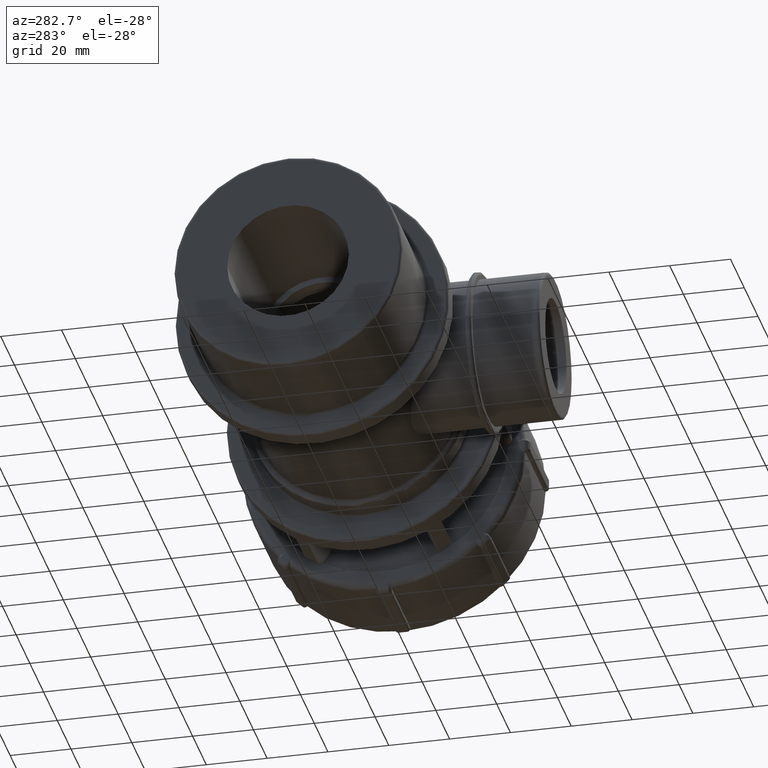
[diagram: clean part render]
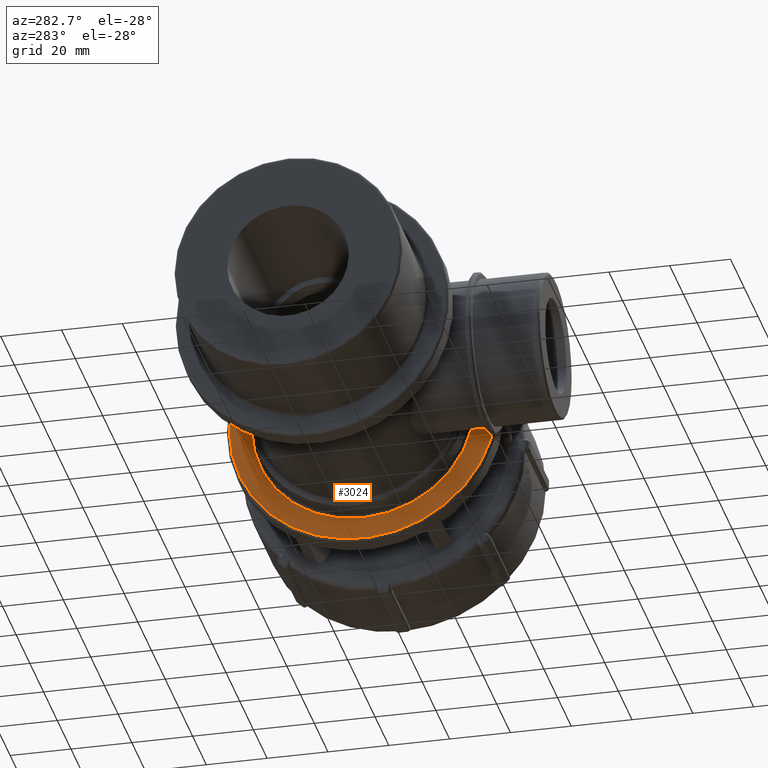
[diagram: same view with one face highlighted and labeled with its STEP entity id]
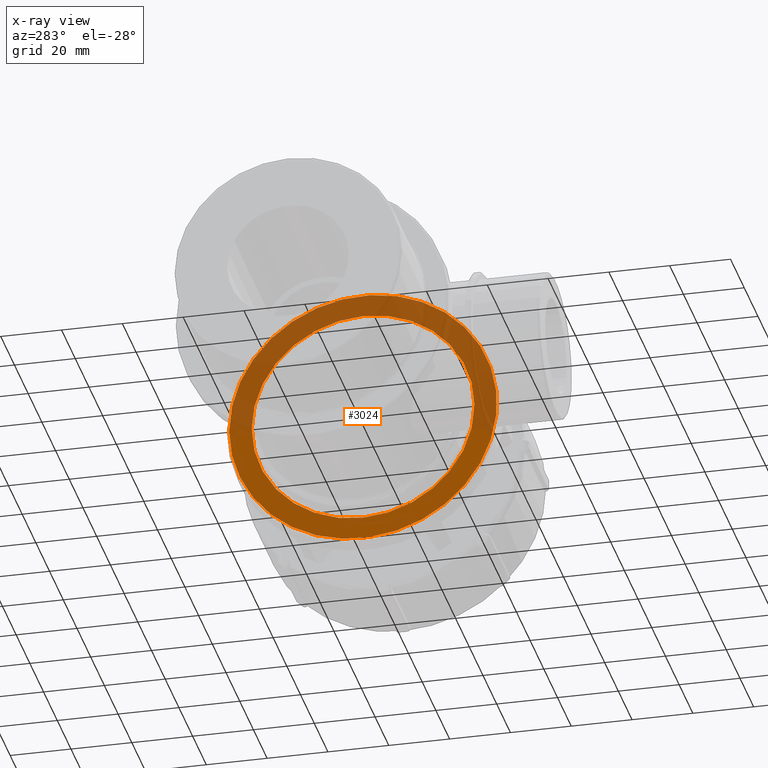
[diagram: x-ray of the same camera — body ghosted, the highlighted face saturated]
A machine part, auxiliary view. The second image highlights one B-rep face of the part: STEP entity #3024.
The next image is the same camera in x-ray: the body ghosted, the highlighted face saturated — about 54% of this face is hidden behind the body in this view.
In plain terms, the highlighted planar face has unit normal (-1, 0, 0).
Its self-contained STEP definition (entity closure, byte-faithful):
#428=PLANE('',#3264);
#529=CIRCLE('',#3263,36.625);
#530=CIRCLE('',#3265,44.);
#758=FACE_BOUND('',#1050,.T.);
#817=FACE_OUTER_BOUND('',#1049,.T.);
#1049=EDGE_LOOP('',(#2103));
#1050=EDGE_LOOP('',(#2104));
#1354=VERTEX_POINT('',#4714);
#1355=VERTEX_POINT('',#4717);
#1648=EDGE_CURVE('',#1354,#1354,#529,.T.);
#1649=EDGE_CURVE('',#1355,#1355,#530,.T.);
#2103=ORIENTED_EDGE('',*,*,#1649,.F.);
#2104=ORIENTED_EDGE('',*,*,#1648,.F.);
#3024=ADVANCED_FACE('',(#817,#758),#428,.T.);
#3263=AXIS2_PLACEMENT_3D('',#4715,#3684,#3685);
#3264=AXIS2_PLACEMENT_3D('',#4716,#3686,#3687);
#3265=AXIS2_PLACEMENT_3D('',#4718,#3688,#3689);
#3684=DIRECTION('center_axis',(-1.,0.,0.));
#3685=DIRECTION('ref_axis',(0.,-1.,1.83697019872103E-16));
#3686=DIRECTION('center_axis',(-1.,0.,0.));
#3687=DIRECTION('ref_axis',(0.,0.,1.));
#3688=DIRECTION('center_axis',(1.,0.,0.));
#3689=DIRECTION('ref_axis',(0.,-1.,1.83697019872103E-16));
#4714=CARTESIAN_POINT('',(33.75,36.625,-1.1213172254693E-14));
#4715=CARTESIAN_POINT('Origin',(33.75,0.,0.));
#4716=CARTESIAN_POINT('Origin',(33.75,45.,0.));
#4717=CARTESIAN_POINT('',(33.75,44.,-2.69422295812418E-15));
#4718=CARTESIAN_POINT('Origin',(33.75,0.,0.));